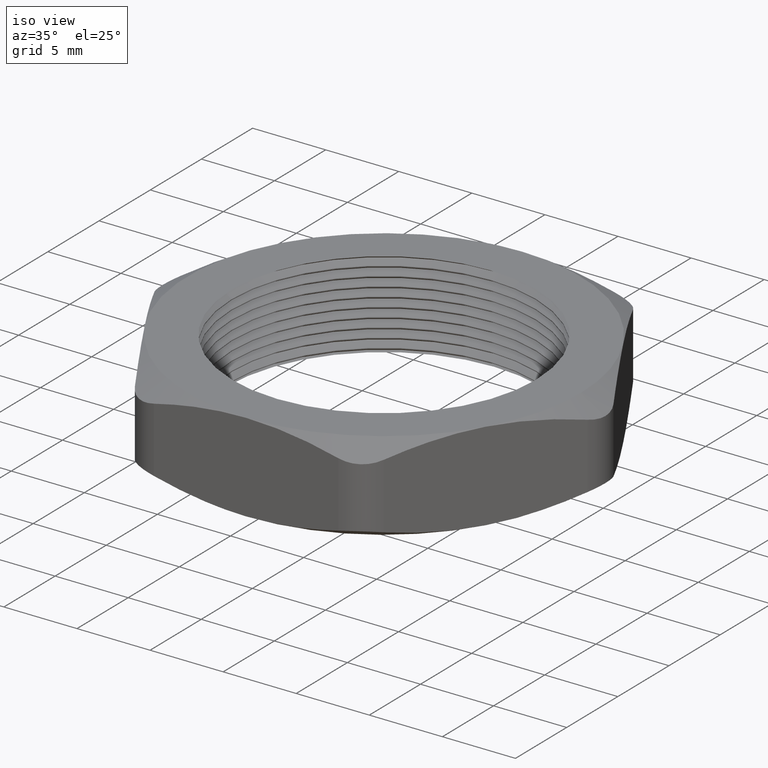
[diagram: clean part render]
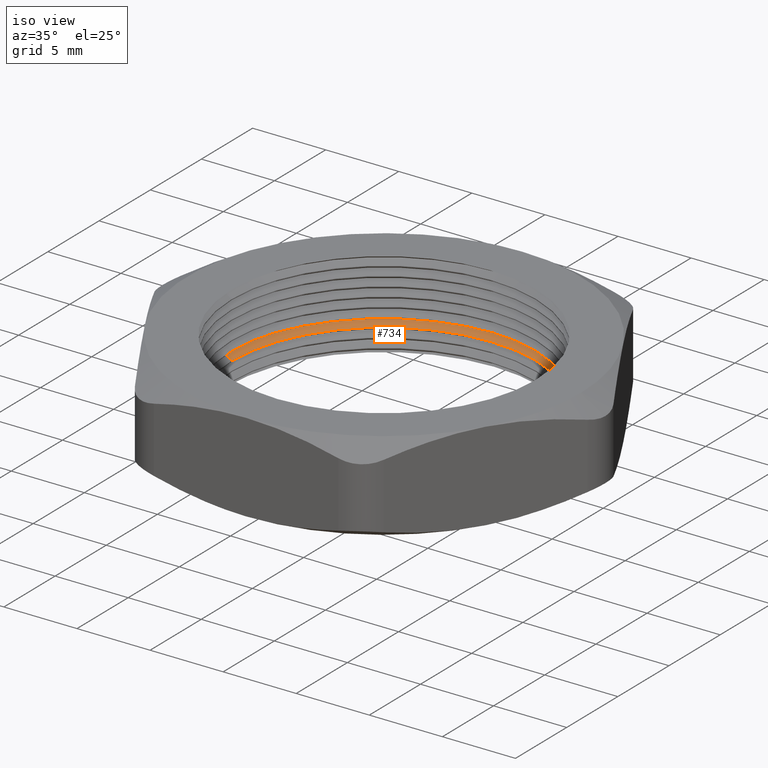
[diagram: same view with one face highlighted and labeled with its STEP entity id]
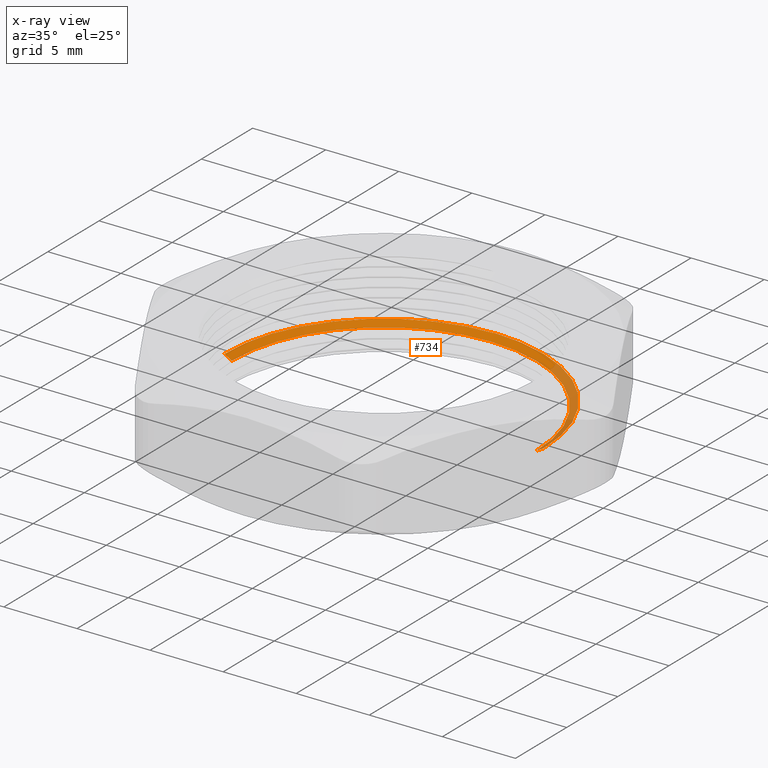
[diagram: x-ray of the same camera — body ghosted, the highlighted face saturated]
A machine part, iso view. The second image highlights one B-rep face of the part: STEP entity #734.
The next image is the same camera in x-ray: the body ghosted, the highlighted face saturated — about 19% of this face is hidden behind the body in this view.
In plain terms, the highlighted conical surface has half-angle 60 deg.
Its self-contained STEP definition (entity closure, byte-faithful):
#142 = EDGE_CURVE ( 'NONE', #812, #143, #1047, .T. ) ;
#143 = VERTEX_POINT ( 'NONE', #1105 ) ;
#146 = VERTEX_POINT ( 'NONE', #1099 ) ;
#148 = EDGE_CURVE ( 'NONE', #813, #146, #1098, .T. ) ;
#338 = EDGE_CURVE ( 'NONE', #813, #812, #1495, .T. ) ;
#733 = EDGE_CURVE ( 'NONE', #146, #143, #2212, .T. ) ;
#734 = ADVANCED_FACE ( 'NONE', ( #2208 ), #2207, .F. ) ;
#735 = EDGE_LOOP ( 'NONE', ( #736, #737, #738, #739 ) ) ;
#736 = ORIENTED_EDGE ( 'NONE', *, *, #142, .F. ) ;
#737 = ORIENTED_EDGE ( 'NONE', *, *, #338, .F. ) ;
#738 = ORIENTED_EDGE ( 'NONE', *, *, #148, .T. ) ;
#739 = ORIENTED_EDGE ( 'NONE', *, *, #733, .T. ) ;
#812 = VERTEX_POINT ( 'NONE', #2312 ) ;
#813 = VERTEX_POINT ( 'NONE', #2311 ) ;
#1046 = CARTESIAN_POINT ( 'NONE',  ( -0.4099999999999999800, 5.021051876504148100E-017, 0.06690598923241510000 ) ) ;
#1047 = LINE ( 'NONE', #1046, #1107 ) ;
#1095 = DIRECTION ( 'NONE',  ( 0.8660254037844359300, 0.0000000000000000000, 0.5000000000000046600 ) ) ;
#1096 = VECTOR ( 'NONE', #1095, 39.37007874015748100 ) ;
#1097 = CARTESIAN_POINT ( 'NONE',  ( 0.4099999999999999800, 0.0000000000000000000, 0.06690598923241510000 ) ) ;
#1098 = LINE ( 'NONE', #1097, #1096 ) ;
#1099 = CARTESIAN_POINT ( 'NONE',  ( 0.4299999999999999900, 5.265981236333618200E-017, 0.07845299461620775000 ) ) ;
#1105 = CARTESIAN_POINT ( 'NONE',  ( -0.4299999999999999900, 0.0000000000000000000, 0.07845299461620775000 ) ) ;
#1106 = DIRECTION ( 'NONE',  ( -0.8660254037844359300, 1.060575238724903700E-016, 0.5000000000000046600 ) ) ;
#1107 = VECTOR ( 'NONE', #1106, 39.37007874015748100 ) ;
#1491 = DIRECTION ( 'NONE',  ( 1.000000000000000000, 0.0000000000000000000, 0.0000000000000000000 ) ) ;
#1492 = DIRECTION ( 'NONE',  ( 0.0000000000000000000, 0.0000000000000000000, 1.000000000000000000 ) ) ;
#1493 = CARTESIAN_POINT ( 'NONE',  ( 0.0000000000000000000, 0.0000000000000000000, 0.06690598923241510000 ) ) ;
#1494 = AXIS2_PLACEMENT_3D ( 'NONE', #1493, #1492, #1491 ) ;
#1495 = CIRCLE ( 'NONE', #1494, 0.4099999999999999800 ) ;
#2207 = CONICAL_SURFACE ( 'NONE', #2270, 0.4099999999999999800, 1.047197551196592300 ) ;
#2208 = FACE_OUTER_BOUND ( 'NONE', #735, .T. ) ;
#2209 = DIRECTION ( 'NONE',  ( 1.000000000000000000, 0.0000000000000000000, 0.0000000000000000000 ) ) ;
#2210 = DIRECTION ( 'NONE',  ( 0.0000000000000000000, 0.0000000000000000000, 1.000000000000000000 ) ) ;
#2211 = AXIS2_PLACEMENT_3D ( 'NONE', #2217, #2210, #2209 ) ;
#2212 = CIRCLE ( 'NONE', #2211, 0.4299999999999999900 ) ;
#2217 = CARTESIAN_POINT ( 'NONE',  ( 0.0000000000000000000, 0.0000000000000000000, 0.07845299461620775000 ) ) ;
#2266 = DIRECTION ( 'NONE',  ( 1.000000000000000000, 0.0000000000000000000, 0.0000000000000000000 ) ) ;
#2267 = DIRECTION ( 'NONE',  ( 0.0000000000000000000, 0.0000000000000000000, 1.000000000000000000 ) ) ;
#2268 = CARTESIAN_POINT ( 'NONE',  ( 0.0000000000000000000, 0.0000000000000000000, 0.06690598923241510000 ) ) ;
#2270 = AXIS2_PLACEMENT_3D ( 'NONE', #2268, #2267, #2266 ) ;
#2311 = CARTESIAN_POINT ( 'NONE',  ( 0.4099999999999999800, 5.021051876504147500E-017, 0.06690598923241510000 ) ) ;
#2312 = CARTESIAN_POINT ( 'NONE',  ( -0.4099999999999999800, 0.0000000000000000000, 0.06690598923241510000 ) ) ;